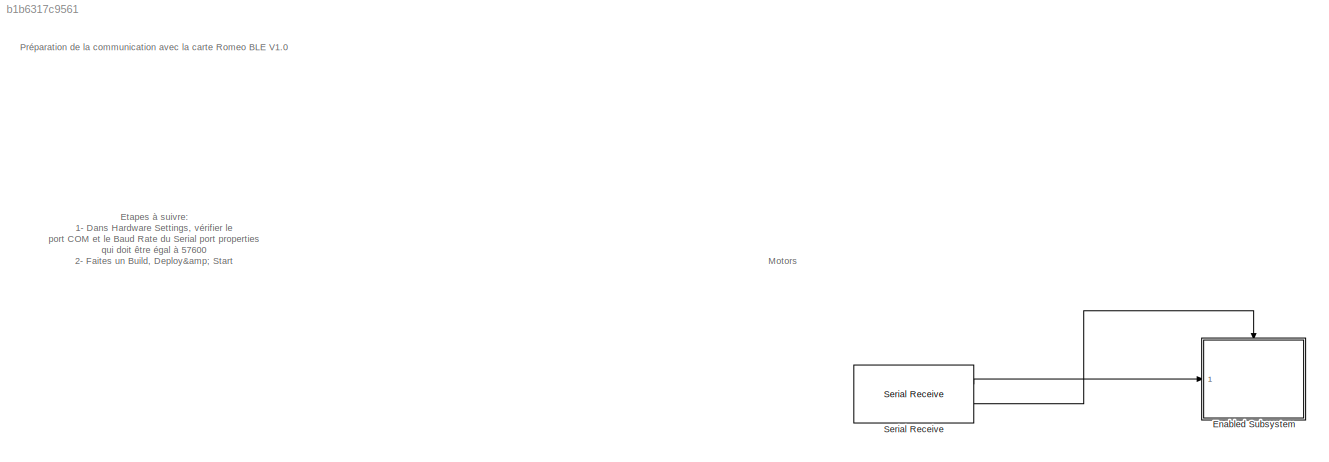
MODEL slx_b1b6317c9561
KIND model
CONFIG AbsTol = auto
CONFIG EnableMultiTasking = on
CONFIG FixedStep = auto
CONFIG MaxStep = auto
CONFIG MinStep = auto
CONFIG RelTol = 1e-3
CONFIG SampleTimeConstraint = Unconstrained
CONFIG Solver = ode45
CONFIG SolverName = ode45
CONFIG StartTime = 0.0
CONFIG StopTime = 10.0
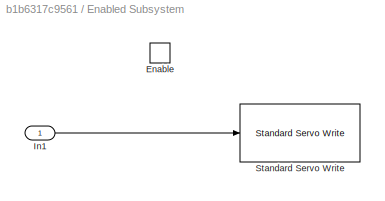
BLOCK [SubSystem] Enabled Subsystem
  Ports = [1, 0, 1]
  RequestExecContextInheritance = off
  TreatAsAtomicUnit = on
BLOCK [EnablePort] Enabled Subsystem/Enable
  Ports = []
BLOCK [Inport] Enabled Subsystem/In1
BLOCK [Reference] Enabled Subsystem/Standard Servo Write  REF=arduinolib/Standard Servo Write
  Ports = [1]
  SourceBlock = arduinolib/Standard Servo Write
  SourceProductBaseCode = ARDUINO
  SourceType = Arduino Standard Servo Write
BLOCK [Reference] Serial Receive  REF=arduinolib/Serial Receive
  Ports = [0, 2]
  SourceBlock = arduinolib/Serial Receive
  SourceProductBaseCode = ARDUINO
  SourceType = Arduino Serial Receive
ANNOTATION (root): Préparation de la communication avec la carte Romeo BLE V1.0
ANNOTATION (root): Etapes à suivre: 1- Dans Hardware Settings, vérifier le port COM et le Baud Rate du Serial port properties qui doit être égal à 57600 2- Faites un Build, Deploy& Start
ANNOTATION (root): Motors
LINE Enabled Subsystem/In1:1 -> Enabled Subsystem/Standard Servo Write:1
LINE Serial Receive:1 -> Enabled Subsystem:1
LINE Serial Receive:2 -> Enabled Subsystem:enable
